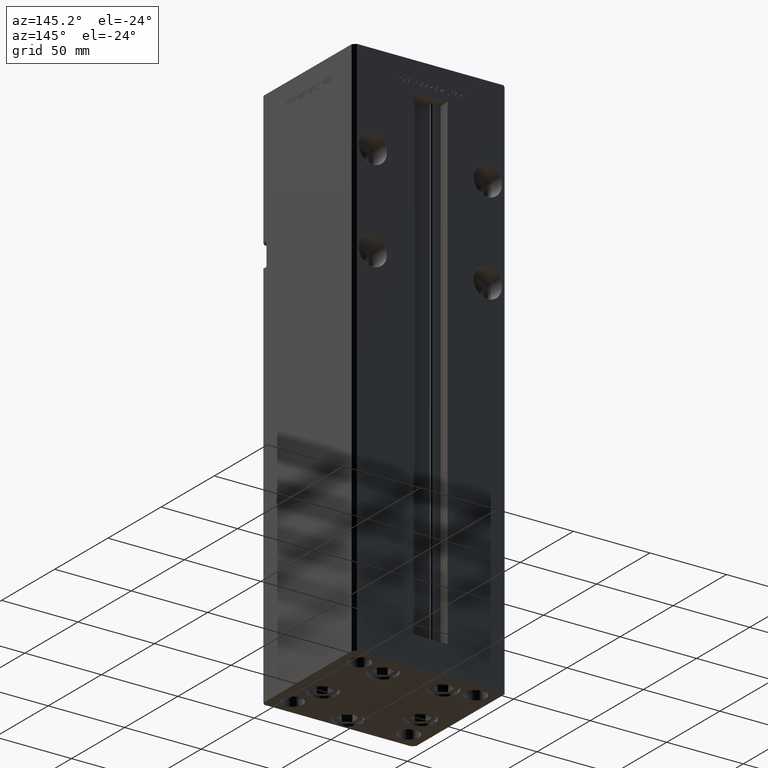
[diagram: clean part render]
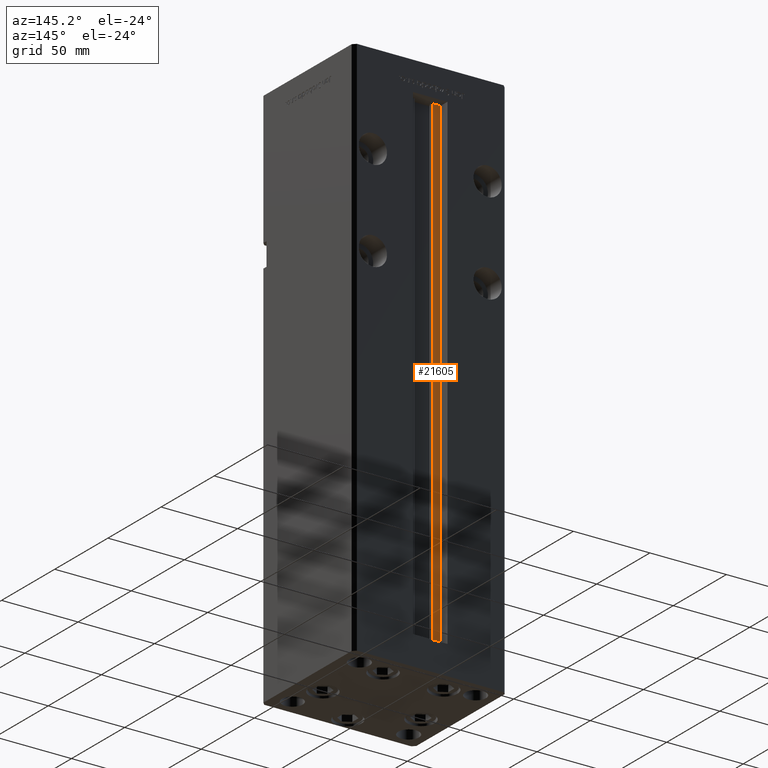
[diagram: same view with one face highlighted and labeled with its STEP entity id]
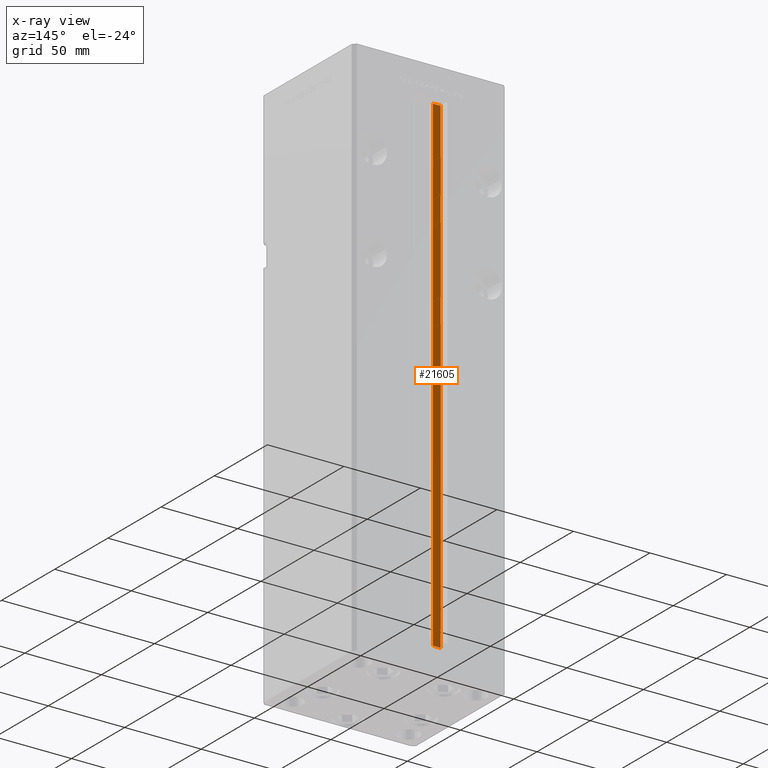
[diagram: x-ray of the same camera — body ghosted, the highlighted face saturated]
A machine part, auxiliary view. The second image highlights one B-rep face of the part: STEP entity #21605.
The next image is the same camera in x-ray: the body ghosted, the highlighted face saturated — about 0% of this face is hidden behind the body in this view.
In plain terms, the highlighted planar face has unit normal (0, -1, 0).
Its self-contained STEP definition (entity closure, byte-faithful):
#1076 = DIRECTION ( 'NONE',  ( 0.000000000000000000, -1.000000000000000000, -0.000000000000000000 ) ) ;
#2951 = DIRECTION ( 'NONE',  ( -1.000000000000000000, 0.000000000000000000, 0.000000000000000000 ) ) ;
#3016 = VECTOR ( 'NONE', #27833, 1000.000000000000000 ) ;
#3316 = VECTOR ( 'NONE', #29186, 1000.000000000000000 ) ;
#4186 = LINE ( 'NONE', #25151, #3316 ) ;
#4188 = VECTOR ( 'NONE', #2951, 1000.000000000000000 ) ;
#4914 = CARTESIAN_POINT ( 'NONE',  ( -6.183333333333996151, 37.00000000000000000, 0.000000000000000000 ) ) ;
#5632 = DIRECTION ( 'NONE',  ( 0.000000000000000000, 0.000000000000000000, -1.000000000000000000 ) ) ;
#6407 = EDGE_CURVE ( 'NONE', #12738, #33611, #4186, .T. ) ;
#10103 = ORIENTED_EDGE ( 'NONE', *, *, #6407, .T. ) ;
#10679 = VERTEX_POINT ( 'NONE', #47781 ) ;
#11156 = CARTESIAN_POINT ( 'NONE',  ( -6.183333333333996151, 37.00000000000000000, 0.000000000000000000 ) ) ;
#12738 = VERTEX_POINT ( 'NONE', #44603 ) ;
#13433 = FACE_OUTER_BOUND ( 'NONE', #19281, .T. ) ;
#16424 = ORIENTED_EDGE ( 'NONE', *, *, #26222, .F. ) ;
#17458 = CARTESIAN_POINT ( 'NONE',  ( -6.183333333333996151, 37.00000000000000000, 0.000000000000000000 ) ) ;
#18395 = ORIENTED_EDGE ( 'NONE', *, *, #22402, .F. ) ;
#18878 = ORIENTED_EDGE ( 'NONE', *, *, #37877, .F. ) ;
#19281 = EDGE_LOOP ( 'NONE', ( #16424, #18395, #10103, #18878 ) ) ;
#20288 = VECTOR ( 'NONE', #20973, 1000.000000000000000 ) ;
#20973 = DIRECTION ( 'NONE',  ( -0.000000000000000000, -0.000000000000000000, 1.000000000000000000 ) ) ;
#21605 = ADVANCED_FACE ( 'NONE', ( #13433 ), #25541, .F. ) ;
#22032 = LINE ( 'NONE', #17458, #20288 ) ;
#22402 = EDGE_CURVE ( 'NONE', #12738, #42276, #31599, .T. ) ;
#23119 = CARTESIAN_POINT ( 'NONE',  ( 0.000000000000000000, 37.00000000000000000, 318.5000000000000000 ) ) ;
#25151 = CARTESIAN_POINT ( 'NONE',  ( -11.24999999999999645, 37.00000000000000000, 0.000000000000000000 ) ) ;
#25541 = PLANE ( 'NONE',  #43337 ) ;
#26222 = EDGE_CURVE ( 'NONE', #42276, #10679, #22032, .T. ) ;
#27833 = DIRECTION ( 'NONE',  ( 1.000000000000000000, -0.000000000000000000, -0.000000000000000000 ) ) ;
#29186 = DIRECTION ( 'NONE',  ( -0.000000000000000000, -0.000000000000000000, 1.000000000000000000 ) ) ;
#31599 = LINE ( 'NONE', #11156, #3016 ) ;
#33611 = VERTEX_POINT ( 'NONE', #33688 ) ;
#33688 = CARTESIAN_POINT ( 'NONE',  ( -11.24999999999999645, 37.00000000000000000, 318.5000000000000000 ) ) ;
#37877 = EDGE_CURVE ( 'NONE', #10679, #33611, #48344, .T. ) ;
#42276 = VERTEX_POINT ( 'NONE', #4914 ) ;
#43337 = AXIS2_PLACEMENT_3D ( 'NONE', #45955, #1076, #5632 ) ;
#44603 = CARTESIAN_POINT ( 'NONE',  ( -11.24999999999999645, 37.00000000000000000, 0.000000000000000000 ) ) ;
#45955 = CARTESIAN_POINT ( 'NONE',  ( -6.183333333333996151, 37.00000000000000000, 0.000000000000000000 ) ) ;
#47781 = CARTESIAN_POINT ( 'NONE',  ( -6.183333333333996151, 37.00000000000000000, 318.5000000000000000 ) ) ;
#48344 = LINE ( 'NONE', #23119, #4188 ) ;